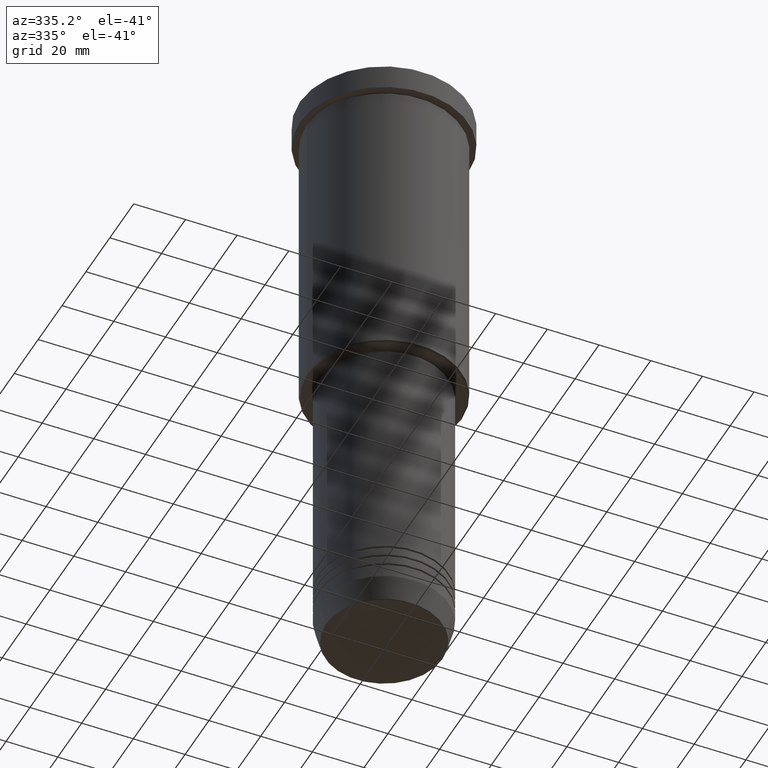
[diagram: clean part render]
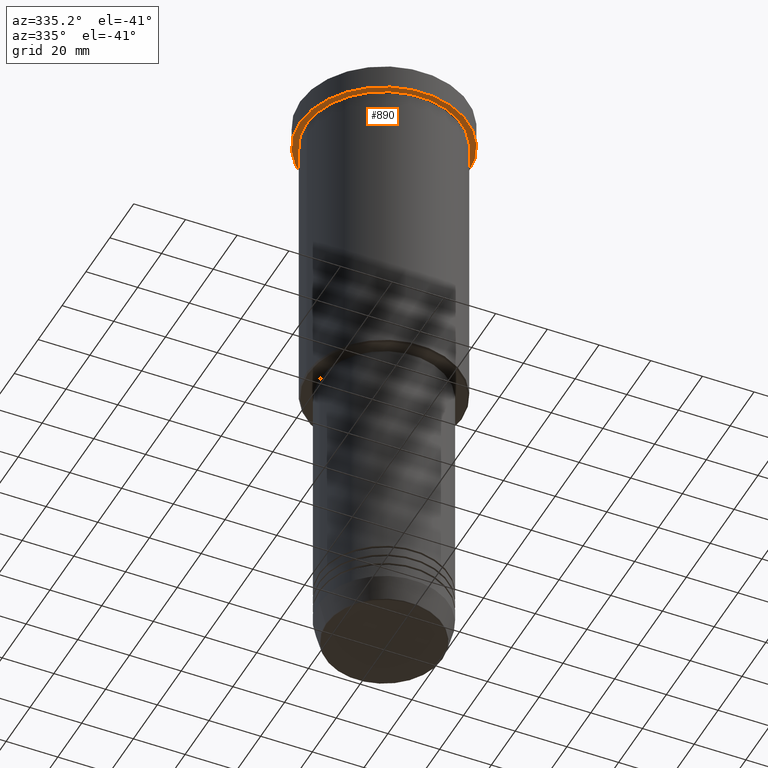
[diagram: same view with one face highlighted and labeled with its STEP entity id]
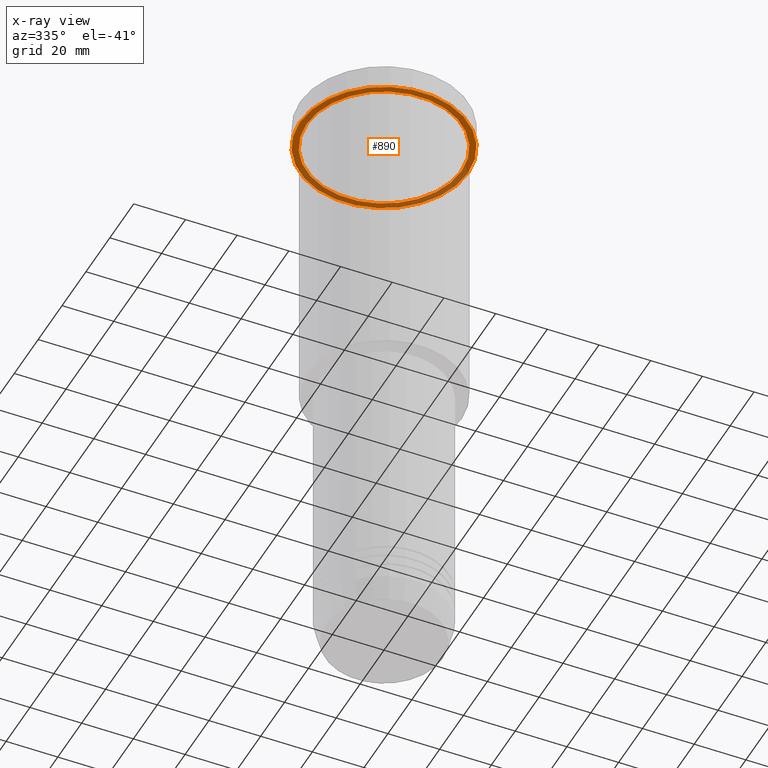
[diagram: x-ray of the same camera — body ghosted, the highlighted face saturated]
A machine part, auxiliary view. The second image highlights one B-rep face of the part: STEP entity #890.
The next image is the same camera in x-ray: the body ghosted, the highlighted face saturated — about 38% of this face is hidden behind the body in this view.
In plain terms, the highlighted planar face has unit normal (0, 0, -1).
Its self-contained STEP definition (entity closure, byte-faithful):
#37 = VERTEX_POINT ( 'NONE', #243 ) ;
#81 = DIRECTION ( 'NONE',  ( -0.000000000000000000, -0.000000000000000000, 1.000000000000000000 ) ) ;
#132 = VERTEX_POINT ( 'NONE', #801 ) ;
#143 = VERTEX_POINT ( 'NONE', #621 ) ;
#184 = DIRECTION ( 'NONE',  ( 0.000000000000000000, 0.000000000000000000, -1.000000000000000000 ) ) ;
#186 = DIRECTION ( 'NONE',  ( 1.000000000000000000, 0.000000000000000000, 0.000000000000000000 ) ) ;
#191 = DIRECTION ( 'NONE',  ( -1.000000000000000000, 0.000000000000000000, -0.000000000000000000 ) ) ;
#202 = CARTESIAN_POINT ( 'NONE',  ( 0.000000000000000000, 0.000000000000000000, -9.999999999999992895 ) ) ;
#214 = CIRCLE ( 'NONE', #352, 32.50000000000000000 ) ;
#215 = DIRECTION ( 'NONE',  ( -1.000000000000000000, 0.000000000000000000, 0.000000000000000000 ) ) ;
#223 = CARTESIAN_POINT ( 'NONE',  ( 0.000000000000000000, 0.000000000000000000, -9.999999999999992895 ) ) ;
#234 = ORIENTED_EDGE ( 'NONE', *, *, #812, .F. ) ;
#243 = CARTESIAN_POINT ( 'NONE',  ( -32.50000000000000000, 3.980102097228898626E-15, -9.999999999999992895 ) ) ;
#278 = ORIENTED_EDGE ( 'NONE', *, *, #462, .T. ) ;
#298 = EDGE_LOOP ( 'NONE', ( #234, #877 ) ) ;
#306 = VERTEX_POINT ( 'NONE', #551 ) ;
#309 = AXIS2_PLACEMENT_3D ( 'NONE', #223, #494, #862 ) ;
#352 = AXIS2_PLACEMENT_3D ( 'NONE', #458, #1114, #186 ) ;
#358 = ORIENTED_EDGE ( 'NONE', *, *, #568, .T. ) ;
#375 = EDGE_CURVE ( 'NONE', #37, #143, #214, .T. ) ;
#383 = PLANE ( 'NONE',  #747 ) ;
#439 = DIRECTION ( 'NONE',  ( 1.000000000000000000, 0.000000000000000000, 0.000000000000000000 ) ) ;
#440 = AXIS2_PLACEMENT_3D ( 'NONE', #910, #81, #439 ) ;
#458 = CARTESIAN_POINT ( 'NONE',  ( 0.000000000000000000, 0.000000000000000000, -9.999999999999992895 ) ) ;
#461 = CIRCLE ( 'NONE', #309, 30.00000000000000000 ) ;
#462 = EDGE_CURVE ( 'NONE', #306, #132, #525, .T. ) ;
#494 = DIRECTION ( 'NONE',  ( -0.000000000000000000, -0.000000000000000000, 1.000000000000000000 ) ) ;
#525 = CIRCLE ( 'NONE', #948, 30.00000000000000000 ) ;
#551 = CARTESIAN_POINT ( 'NONE',  ( 30.00000000000000000, 3.673940397442059178E-15, -9.999999999999992895 ) ) ;
#568 = EDGE_CURVE ( 'NONE', #132, #306, #461, .T. ) ;
#621 = CARTESIAN_POINT ( 'NONE',  ( 32.50000000000000000, 0.000000000000000000, -9.999999999999992895 ) ) ;
#707 = EDGE_LOOP ( 'NONE', ( #358, #278 ) ) ;
#747 = AXIS2_PLACEMENT_3D ( 'NONE', #1099, #184, #191 ) ;
#801 = CARTESIAN_POINT ( 'NONE',  ( -30.00000000000000000, 0.000000000000000000, -9.999999999999992895 ) ) ;
#812 = EDGE_CURVE ( 'NONE', #143, #37, #1115, .T. ) ;
#862 = DIRECTION ( 'NONE',  ( -1.000000000000000000, 0.000000000000000000, 0.000000000000000000 ) ) ;
#877 = ORIENTED_EDGE ( 'NONE', *, *, #375, .F. ) ;
#890 = ADVANCED_FACE ( 'NONE', ( #1109, #1116 ), #383, .T. ) ;
#910 = CARTESIAN_POINT ( 'NONE',  ( 0.000000000000000000, 0.000000000000000000, -9.999999999999992895 ) ) ;
#948 = AXIS2_PLACEMENT_3D ( 'NONE', #202, #1128, #215 ) ;
#1099 = CARTESIAN_POINT ( 'NONE',  ( 0.000000000000000000, 32.50000000000000000, -9.999999999999992895 ) ) ;
#1109 = FACE_BOUND ( 'NONE', #707, .T. ) ;
#1114 = DIRECTION ( 'NONE',  ( -0.000000000000000000, -0.000000000000000000, 1.000000000000000000 ) ) ;
#1115 = CIRCLE ( 'NONE', #440, 32.50000000000000000 ) ;
#1116 = FACE_OUTER_BOUND ( 'NONE', #298, .T. ) ;
#1128 = DIRECTION ( 'NONE',  ( -0.000000000000000000, -0.000000000000000000, 1.000000000000000000 ) ) ;